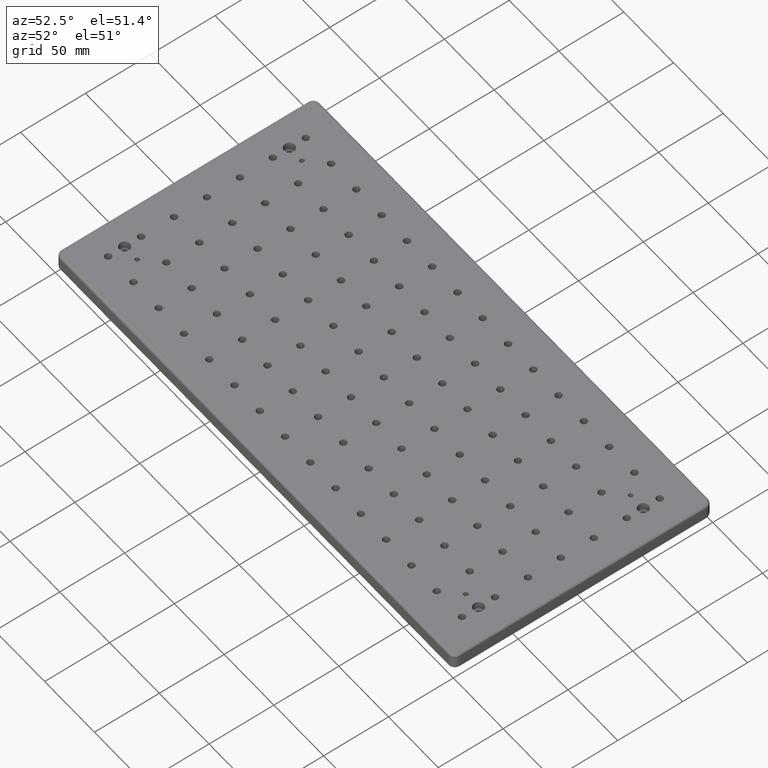
[diagram: clean part render]
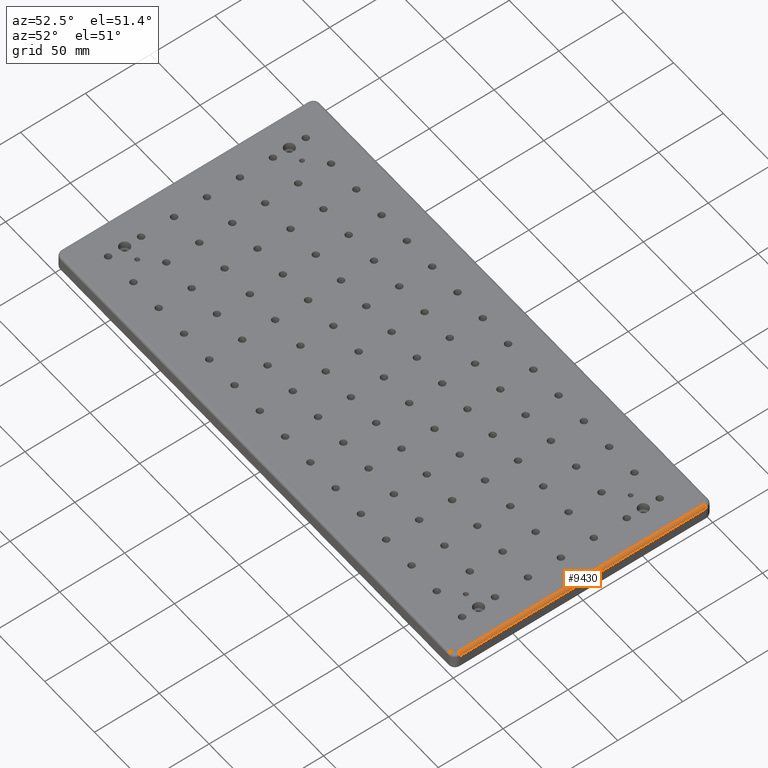
[diagram: same view with one face highlighted and labeled with its STEP entity id]
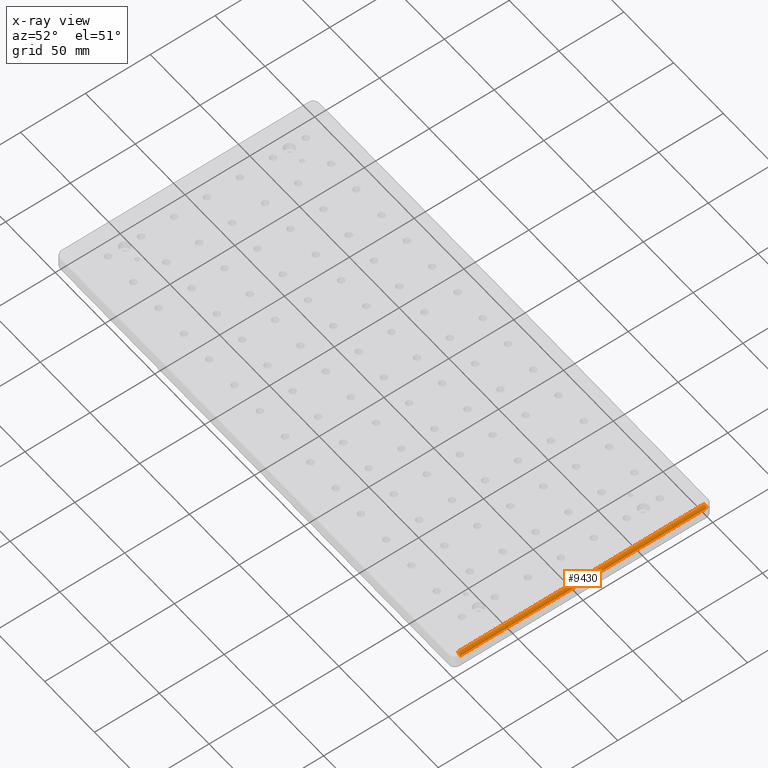
[diagram: x-ray of the same camera — body ghosted, the highlighted face saturated]
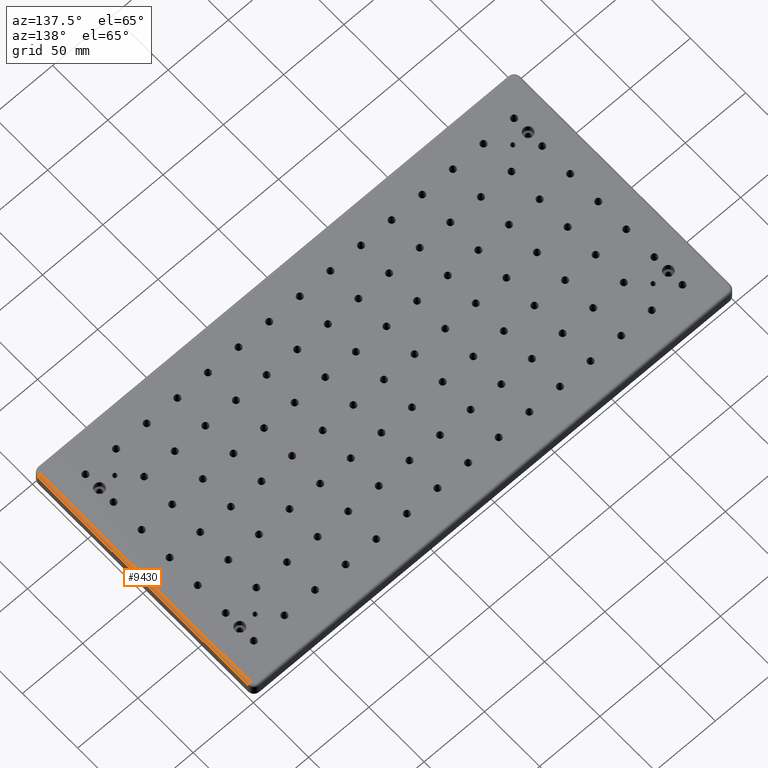
[diagram: same view with one face highlighted and labeled with its STEP entity id]
A machine part, auxiliary view. The second image highlights one B-rep face of the part: STEP entity #9430.
The next image is the same camera in x-ray: the body ghosted, the highlighted face saturated — about 0% of this face is hidden behind the body in this view.
A second angle (auxiliary view) of the same face is appended — the face is thin or edge-on in the first view.
In plain terms, the highlighted cylindrical surface (edge-blend (fillet) strip) has radius 2 mm, axis along (0, -1, 0).
Its self-contained STEP definition (entity closure, byte-faithful):
#369 = DIRECTION ( 'NONE',  ( 2.921639538487251300E-016, -1.000000000000000000, -0.0000000000000000000 ) ) ;
#519 = LINE ( 'NONE', #1030, #641 ) ;
#641 = VECTOR ( 'NONE', #369, 1000.000000000000000 ) ;
#754 = CARTESIAN_POINT ( 'NONE',  ( 197.9999999999999400, 95.00000000000022700, -2.000000000000000000 ) ) ;
#845 = FACE_OUTER_BOUND ( 'NONE', #6195, .T. ) ;
#974 = CARTESIAN_POINT ( 'NONE',  ( 199.9999999999999400, 95.00000000000017100, -2.000000000000003600 ) ) ;
#1030 = CARTESIAN_POINT ( 'NONE',  ( 200.0000000000000000, -95.00000000000005700, -2.000000000000000000 ) ) ;
#1127 = VERTEX_POINT ( 'NONE', #4522 ) ;
#1575 = CARTESIAN_POINT ( 'NONE',  ( 197.9999999999999400, 95.00000000000017100, 0.0000000000000000000 ) ) ;
#1829 = EDGE_CURVE ( 'NONE', #1127, #4193, #7108, .T. ) ;
#2121 = DIRECTION ( 'NONE',  ( 0.0000000000000000000, 0.0000000000000000000, -1.000000000000000000 ) ) ;
#2855 = ORIENTED_EDGE ( 'NONE', *, *, #4859, .F. ) ;
#2884 = AXIS2_PLACEMENT_3D ( 'NONE', #7220, #4387, #2121 ) ;
#3015 = CIRCLE ( 'NONE', #5549, 2.000000000000000000 ) ;
#3147 = ORIENTED_EDGE ( 'NONE', *, *, #1829, .F. ) ;
#3166 = VERTEX_POINT ( 'NONE', #974 ) ;
#3291 = EDGE_CURVE ( 'NONE', #3166, #4589, #519, .T. ) ;
#4193 = VERTEX_POINT ( 'NONE', #5018 ) ;
#4387 = DIRECTION ( 'NONE',  ( 0.0000000000000000000, -1.000000000000000000, 0.0000000000000000000 ) ) ;
#4419 = DIRECTION ( 'NONE',  ( 1.000000000000000000, 0.0000000000000000000, 0.0000000000000000000 ) ) ;
#4463 = ORIENTED_EDGE ( 'NONE', *, *, #3291, .F. ) ;
#4522 = CARTESIAN_POINT ( 'NONE',  ( 198.0000000000000000, -95.00000000000005700, 0.0000000000000000000 ) ) ;
#4589 = VERTEX_POINT ( 'NONE', #6774 ) ;
#4624 = CYLINDRICAL_SURFACE ( 'NONE', #9224, 2.000000000000001800 ) ;
#4639 = ORIENTED_EDGE ( 'NONE', *, *, #9444, .T. ) ;
#4859 = EDGE_CURVE ( 'NONE', #4589, #1127, #3015, .T. ) ;
#5018 = CARTESIAN_POINT ( 'NONE',  ( 197.9999999999999400, 95.00000000000017100, 0.0000000000000000000 ) ) ;
#5549 = AXIS2_PLACEMENT_3D ( 'NONE', #7927, #7963, #7277 ) ;
#6195 = EDGE_LOOP ( 'NONE', ( #4639, #3147, #2855, #4463 ) ) ;
#6774 = CARTESIAN_POINT ( 'NONE',  ( 200.0000000000000600, -95.00000000000005700, -2.000000000000003600 ) ) ;
#7108 = LINE ( 'NONE', #1575, #8140 ) ;
#7220 = CARTESIAN_POINT ( 'NONE',  ( 197.9999999999999700, 95.00000000000017100, -1.999999999999999100 ) ) ;
#7277 = DIRECTION ( 'NONE',  ( 0.0000000000000000000, 0.0000000000000000000, -1.000000000000000000 ) ) ;
#7927 = CARTESIAN_POINT ( 'NONE',  ( 198.0000000000000000, -95.00000000000005700, -2.000000000000000000 ) ) ;
#7963 = DIRECTION ( 'NONE',  ( 0.0000000000000000000, -1.000000000000000000, 0.0000000000000000000 ) ) ;
#8041 = DIRECTION ( 'NONE',  ( 2.921639538487251300E-016, -1.000000000000000000, 0.0000000000000000000 ) ) ;
#8060 = CIRCLE ( 'NONE', #2884, 2.000000000000000000 ) ;
#8140 = VECTOR ( 'NONE', #8822, 1000.000000000000000 ) ;
#8822 = DIRECTION ( 'NONE',  ( -2.921639538487251300E-016, 1.000000000000000000, 0.0000000000000000000 ) ) ;
#9224 = AXIS2_PLACEMENT_3D ( 'NONE', #754, #8041, #4419 ) ;
#9430 = ADVANCED_FACE ( 'NONE', ( #845 ), #4624, .T. ) ;
#9444 = EDGE_CURVE ( 'NONE', #3166, #4193, #8060, .T. ) ;